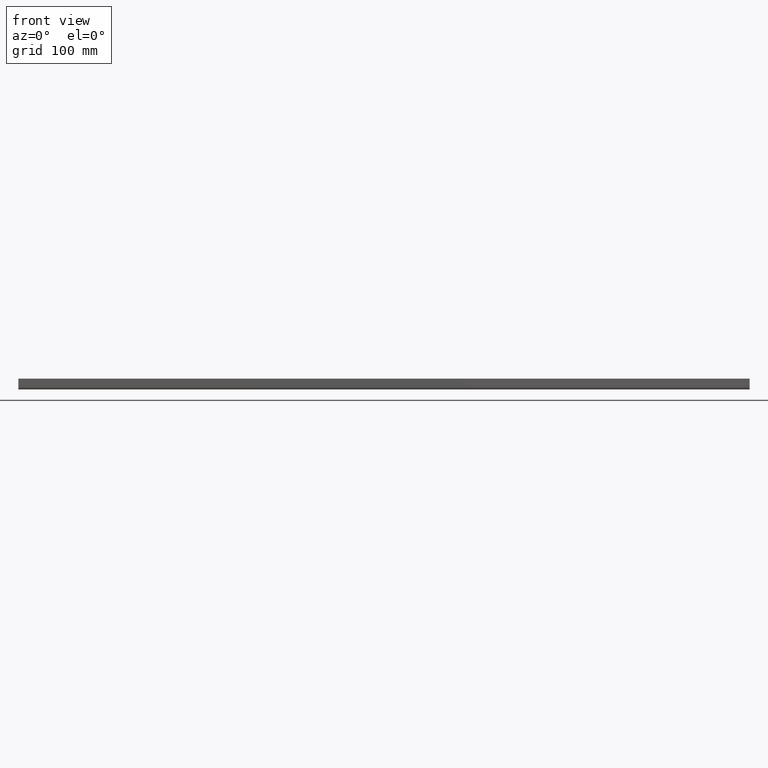
[diagram: clean part render]
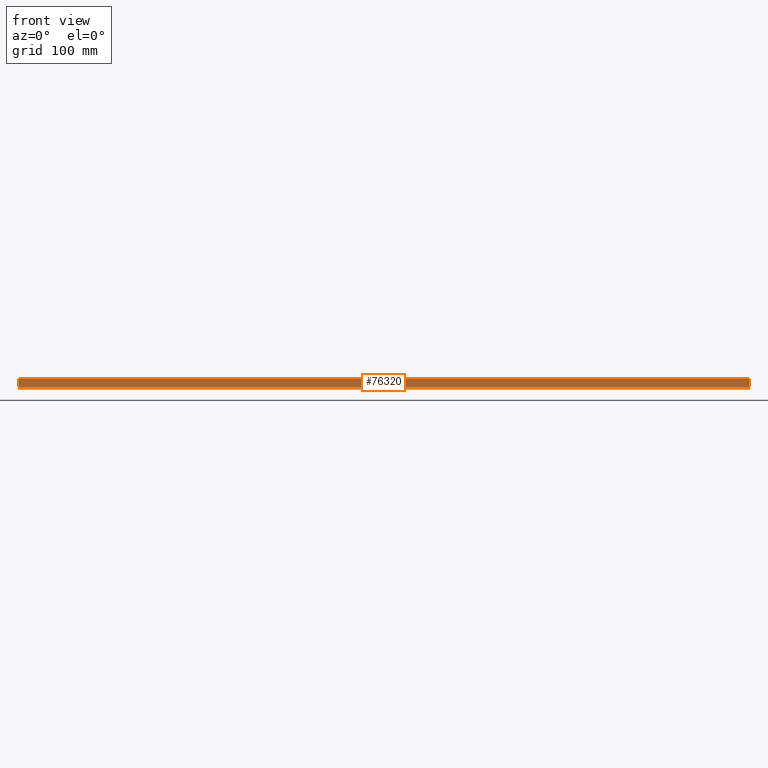
[diagram: same view with one face highlighted and labeled with its STEP entity id]
A machine part, front view. The second image highlights one B-rep face of the part: STEP entity #76320.
In plain terms, the highlighted planar face has unit normal (-0, -1, -0).
Its self-contained STEP definition (entity closure, byte-faithful):
#75930=CARTESIAN_POINT('',(18.4857505441061,0.,-1009.5));
#75940=DIRECTION('',(0.,-1.,0.));
#75950=DIRECTION('',(1.,0.,0.));
#75960=AXIS2_PLACEMENT_3D('',#75930,#75940,#75950);
#75970=PLANE('',#75960);
#75980=CARTESIAN_POINT('',(7.00000000000001,0.,0.));
#75990=DIRECTION('',(0.,0.,-1.));
#76000=VECTOR('',#75990,1.);
#76010=LINE('',#75980,#76000);
#76020=CARTESIAN_POINT('',(7.00000000000001,0.,-2.5));
#76030=VERTEX_POINT('',#76020);
#76040=CARTESIAN_POINT('',(7.00000000000001,0.,-1009.5));
#76050=VERTEX_POINT('',#76040);
#76060=EDGE_CURVE('',#76030,#76050,#76010,.T.);
#76070=ORIENTED_EDGE('',*,*,#76060,.T.);
#76080=CARTESIAN_POINT('',(0.,0.,-2.5));
#76090=DIRECTION('',(1.,0.,0.));
#76100=VECTOR('',#76090,1.);
#76110=LINE('',#76080,#76100);
#76120=CARTESIAN_POINT('',(18.4857505441061,0.,-2.5));
#76130=VERTEX_POINT('',#76120);
#76140=EDGE_CURVE('',#76030,#76130,#76110,.T.);
#76150=ORIENTED_EDGE('',*,*,#76140,.F.);
#76160=CARTESIAN_POINT('',(18.4857505441061,0.,-1009.5));
#76170=DIRECTION('',(0.,0.,1.));
#76180=VECTOR('',#76170,1.);
#76190=LINE('',#76160,#76180);
#76200=CARTESIAN_POINT('',(18.4857505441061,0.,-1009.5));
#76210=VERTEX_POINT('',#76200);
#76220=EDGE_CURVE('',#76210,#76130,#76190,.T.);
#76230=ORIENTED_EDGE('',*,*,#76220,.T.);
#76240=CARTESIAN_POINT('',(0.,0.,-1009.5));
#76250=DIRECTION('',(-1.,0.,0.));
#76260=VECTOR('',#76250,1.);
#76270=LINE('',#76240,#76260);
#76280=EDGE_CURVE('',#76210,#76050,#76270,.T.);
#76290=ORIENTED_EDGE('',*,*,#76280,.F.);
#76300=EDGE_LOOP('',(#76290,#76230,#76150,#76070));
#76310=FACE_OUTER_BOUND('',#76300,.T.);
#76320=ADVANCED_FACE('',(#76310),#75970,.T.);